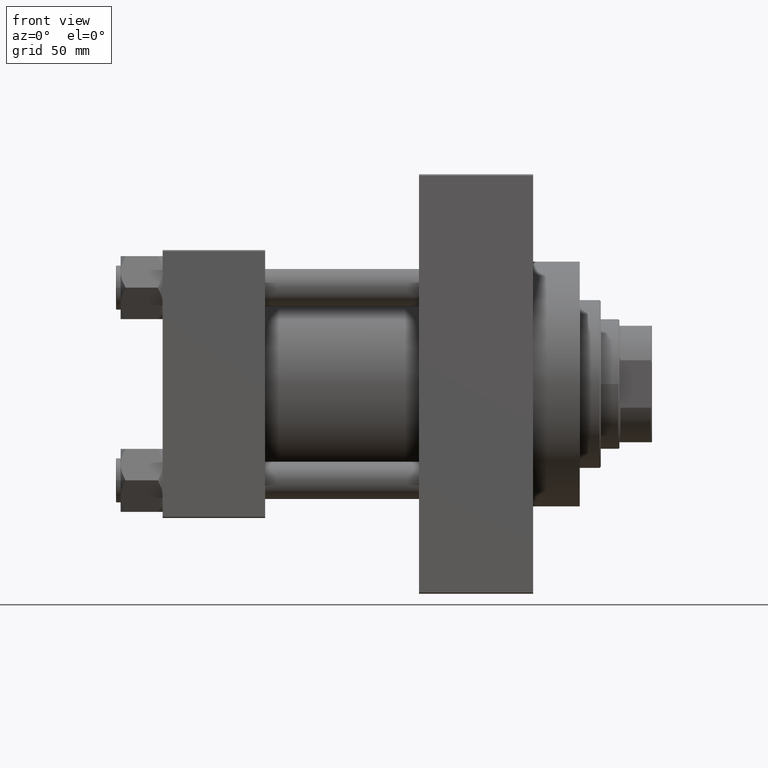
[diagram: clean part render]
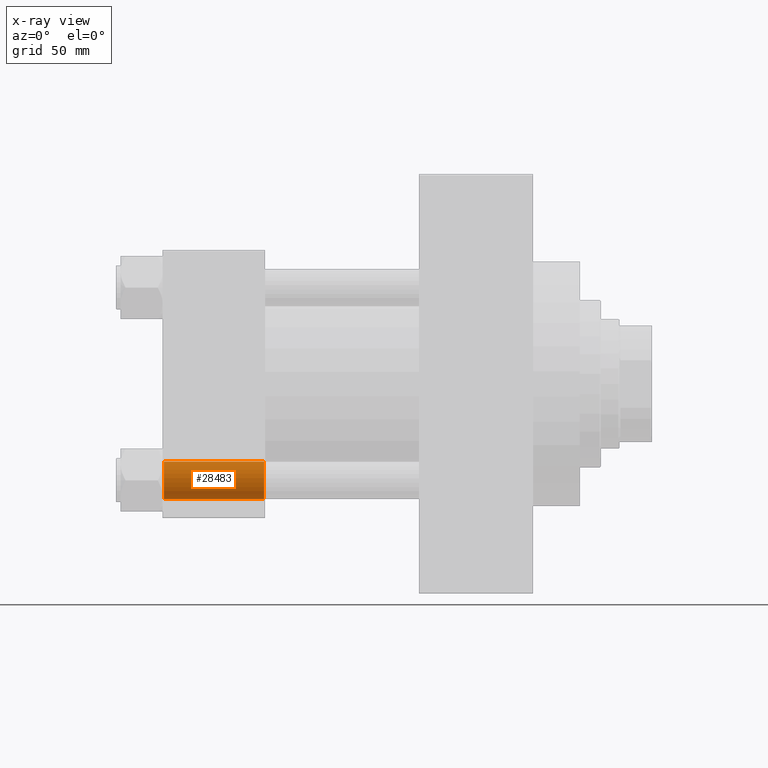
[diagram: x-ray — body ghosted, one internal face saturated and labeled with its STEP entity id]
A machine part, front view, then the same camera in x-ray: the body is ghosted and one INTERNAL B-rep face — a face not visible from any outside direction — is saturated and labeled: STEP entity #28483.
In plain terms, the highlighted cylindrical surface (edge-blend (fillet) strip) has radius 8 mm, axis along (-1, -0, -0).
Its self-contained STEP definition (entity closure, byte-faithful):
#818 = VECTOR ( 'NONE', #7886, 1000.000000000000000 ) ;
#1058 = EDGE_LOOP ( 'NONE', ( #32203, #8518, #31262, #8359 ) ) ;
#4900 = CARTESIAN_POINT ( 'NONE',  ( 0.4999999999999935052, 41.34999999999999432, -33.35000000000000142 ) ) ;
#6067 = CARTESIAN_POINT ( 'NONE',  ( 44.00000000000001421, 41.34999999999999432, -49.35000000000000853 ) ) ;
#7788 = CIRCLE ( 'NONE', #33228, 8.000000000000000000 ) ;
#7886 = DIRECTION ( 'NONE',  ( -1.000000000000000000, -0.000000000000000000, -0.000000000000000000 ) ) ;
#8089 = AXIS2_PLACEMENT_3D ( 'NONE', #46641, #9961, #46160 ) ;
#8359 = ORIENTED_EDGE ( 'NONE', *, *, #14085, .F. ) ;
#8518 = ORIENTED_EDGE ( 'NONE', *, *, #38761, .T. ) ;
#9095 = CYLINDRICAL_SURFACE ( 'NONE', #37016, 8.000000000000000000 ) ;
#9961 = DIRECTION ( 'NONE',  ( 1.000000000000000000, -0.000000000000000000, -0.000000000000000000 ) ) ;
#12486 = DIRECTION ( 'NONE',  ( -1.000000000000000000, -0.000000000000000000, -0.000000000000000000 ) ) ;
#12895 = VERTEX_POINT ( 'NONE', #23967 ) ;
#12963 = CARTESIAN_POINT ( 'NONE',  ( 43.49999999999990763, 41.34999999999999432, -49.35000000000000853 ) ) ;
#14085 = EDGE_CURVE ( 'NONE', #12895, #17958, #25264, .T. ) ;
#16090 = DIRECTION ( 'NONE',  ( 0.000000000000000000, 0.000000000000000000, 1.000000000000000000 ) ) ;
#17958 = VERTEX_POINT ( 'NONE', #4900 ) ;
#21794 = VECTOR ( 'NONE', #43466, 1000.000000000000000 ) ;
#22532 = CARTESIAN_POINT ( 'NONE',  ( 0.4999999999999935052, 41.34999999999999432, -41.35000000000000142 ) ) ;
#23967 = CARTESIAN_POINT ( 'NONE',  ( 43.49999999999990763, 41.34999999999999432, -33.35000000000000142 ) ) ;
#24653 = LINE ( 'NONE', #6067, #21794 ) ;
#25264 = LINE ( 'NONE', #40702, #818 ) ;
#26495 = CARTESIAN_POINT ( 'NONE',  ( 44.00000000000001421, 41.34999999999999432, -41.35000000000000142 ) ) ;
#28483 = ADVANCED_FACE ( 'NONE', ( #34693 ), #9095, .F. ) ;
#30925 = EDGE_CURVE ( 'NONE', #43358, #17958, #7788, .T. ) ;
#31262 = ORIENTED_EDGE ( 'NONE', *, *, #30925, .T. ) ;
#32203 = ORIENTED_EDGE ( 'NONE', *, *, #43684, .T. ) ;
#33228 = AXIS2_PLACEMENT_3D ( 'NONE', #22532, #37507, #37275 ) ;
#34668 = CARTESIAN_POINT ( 'NONE',  ( 0.4999999999999935052, 41.34999999999999432, -49.35000000000000853 ) ) ;
#34693 = FACE_OUTER_BOUND ( 'NONE', #1058, .T. ) ;
#37016 = AXIS2_PLACEMENT_3D ( 'NONE', #26495, #12486, #16090 ) ;
#37275 = DIRECTION ( 'NONE',  ( 0.000000000000000000, 0.000000000000000000, 1.000000000000000000 ) ) ;
#37507 = DIRECTION ( 'NONE',  ( -1.000000000000000000, 0.000000000000000000, 0.000000000000000000 ) ) ;
#38130 = CIRCLE ( 'NONE', #8089, 8.000000000000000000 ) ;
#38761 = EDGE_CURVE ( 'NONE', #38928, #43358, #24653, .T. ) ;
#38928 = VERTEX_POINT ( 'NONE', #12963 ) ;
#40702 = CARTESIAN_POINT ( 'NONE',  ( 44.00000000000001421, 41.34999999999999432, -33.35000000000000142 ) ) ;
#43358 = VERTEX_POINT ( 'NONE', #34668 ) ;
#43466 = DIRECTION ( 'NONE',  ( -1.000000000000000000, -0.000000000000000000, -0.000000000000000000 ) ) ;
#43684 = EDGE_CURVE ( 'NONE', #12895, #38928, #38130, .T. ) ;
#46160 = DIRECTION ( 'NONE',  ( 0.000000000000000000, 0.000000000000000000, 1.000000000000000000 ) ) ;
#46641 = CARTESIAN_POINT ( 'NONE',  ( 43.49999999999990763, 41.34999999999999432, -41.35000000000000142 ) ) ;